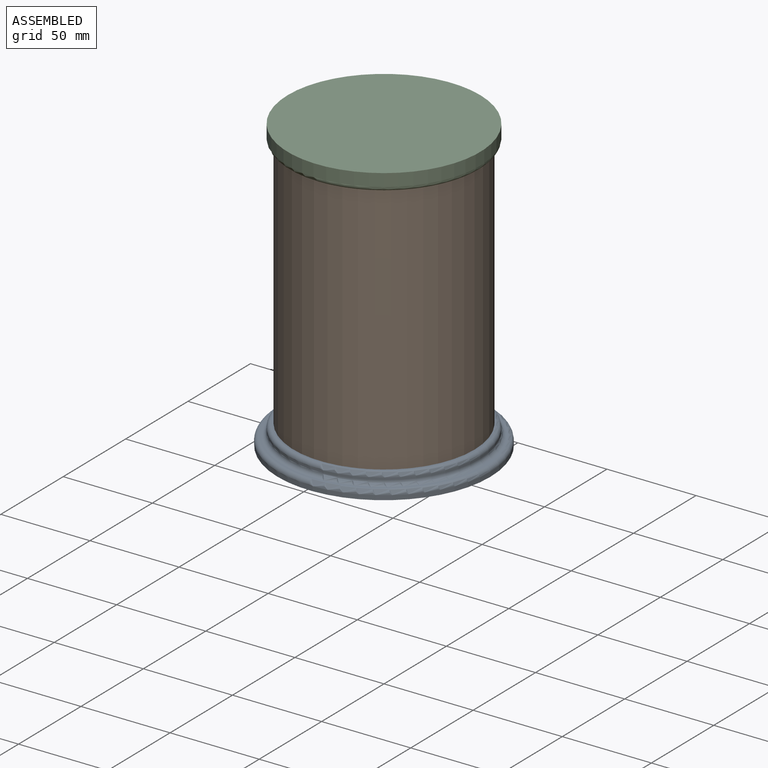
[diagram: assembled view]
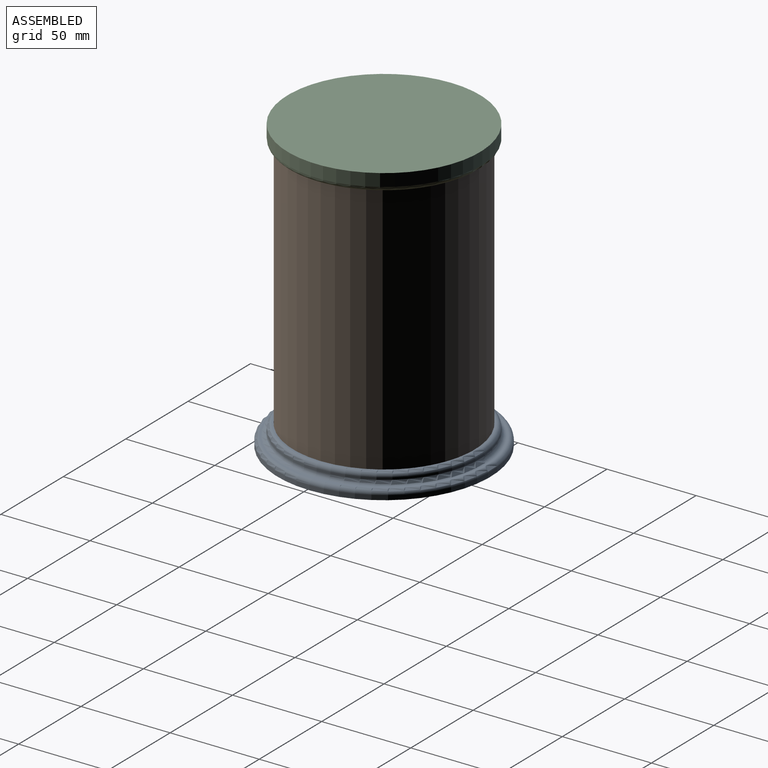
[diagram: assembled view, second angle]
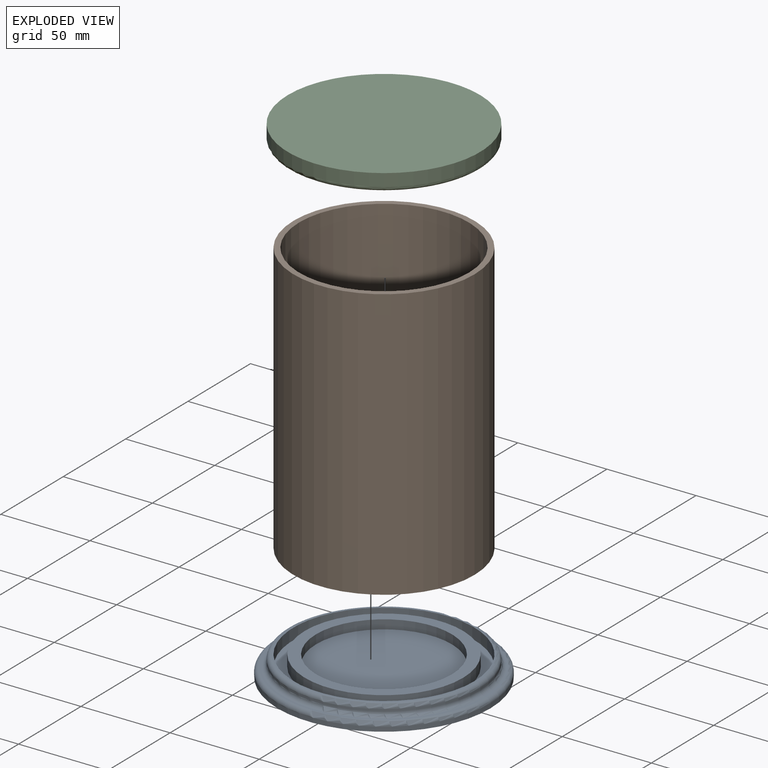
[diagram: exploded view]
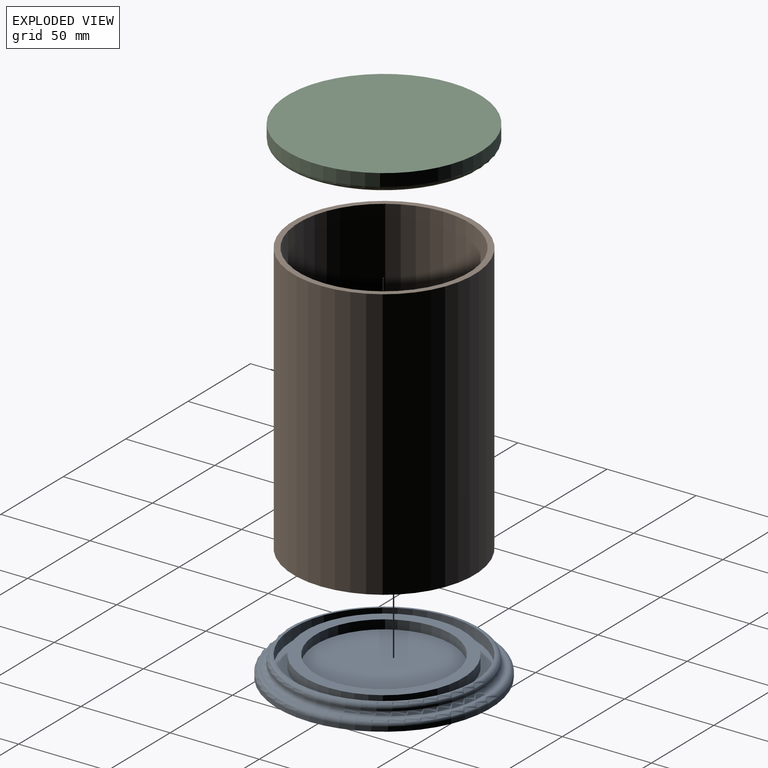
[diagram: exploded view, second angle]
ASSEMBLY  parts=3 mates=3
PART A: 14 faces, bbox 129.2x129.2x11.4 mm
  f0: plane 102.87x102.87mm, normal (0,0,1), area 203.9mm2, adj f1,f13
  f1: cylinder r=50.8mm len=101.6mm, axis (0,0,1), area 2026.8mm2, adj f0,f2
  f2: plane 101.6x101.6mm, normal (0,0,1), area 1900.2mm2, adj f1,f3
  f3: cylinder r=44.45mm len=88.9mm, axis (0,0,1), area 1773.5mm2, adj f2,f4
  f4: plane 88.9x88.9mm, normal (0,0,1), area 1646.8mm2, adj f3,f5
  f5: cylinder r=38.1mm len=76.2mm, axis (0,0,1), area 1216.1mm2, adj f4,f6
  f6: plane 76.2x76.2mm, normal (0,0,1), area 4560.4mm2, adj f5
  f7: plane 119.38x119.38mm, normal (0,0,-1), area 11193.2mm2, adj f8
  f8: cylinder r=59.69mm len=119.38mm, axis (0,0,1), area 952.6mm2, adj f7,f9
  f9: torus R=57.15mm, axis (0,0,1), area 1473.2mm2, adj f8,f10
  f10: plane 114.3x114.3mm, normal (0,0,1), area 226.8mm2, adj f9,f11
  f11: torus R=56.52mm, axis (0,0,1), area 1376.2mm2, adj f10,f12
  f12: cylinder r=53.98mm len=107.95mm, axis (0,0,1), area 430.7mm2, adj f11,f13
  f13: torus R=51.44mm, axis (0,0,1), area 1330mm2, adj f0,f12
PART B: 4 faces, bbox 101.6x101.6x152.4 mm
  f0: cylinder r=47.62mm len=152.4mm, axis (0,0,-1), area 45603.7mm2, adj f2,f3
  f1: cylinder r=50.8mm len=152.4mm, axis (0,0,-1), area 48643.9mm2, adj f2,f3
  f2: plane 101.6x101.6mm, normal (0,0,1), area 981.7mm2, adj f0,f1
  f3: plane 101.6x101.6mm, normal (0,0,-1), area 981.7mm2, adj f0,f1
PART C: 5 faces, bbox 116.8x116.8x9.6 mm
  f0: plane 104.14x104.14mm, normal (0,0,-1), area 8517.8mm2, adj f1
  f1: cylinder r=52.07mm len=104.14mm, axis (0,0,-1), area 2481.1mm2, adj f0,f4
  f2: cylinder r=53.98mm len=107.95mm, axis (0,0,-1), area 2383.9mm2, adj f3,f4
  f3: plane 107.95x107.95mm, normal (0,0,1), area 9152.4mm2, adj f2
  f4: torus R=51.44mm, axis (0,0,-1), area 1121.2mm2, adj f1,f2
PLACE A at identity fixed
PLACE B t=(0,0,8.89)mm
PLACE C t=(0,0,-3.53)mm
MATE slider B.f0 <-> A.f1  axis (0,0,-1) through (0,0,8.89)mm
MATE cylindrical B.f0 <-> A.f1  axis (0,0,-1) through (0,0,85.09)mm
MATE cylindrical C.f1 <-> B.f0  axis (0,0,-1) through (0,0,161.29)mm
